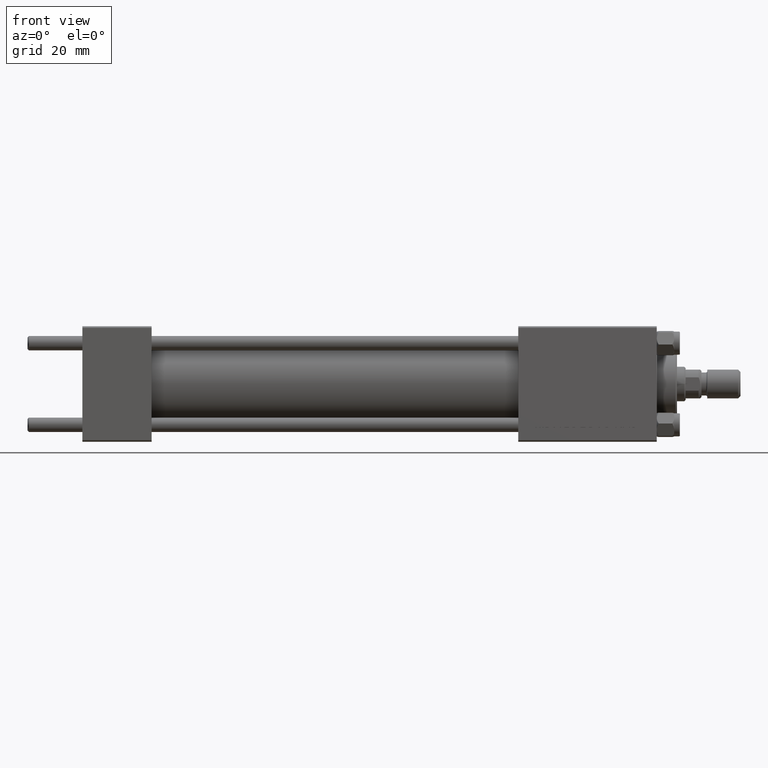
[diagram: clean part render]
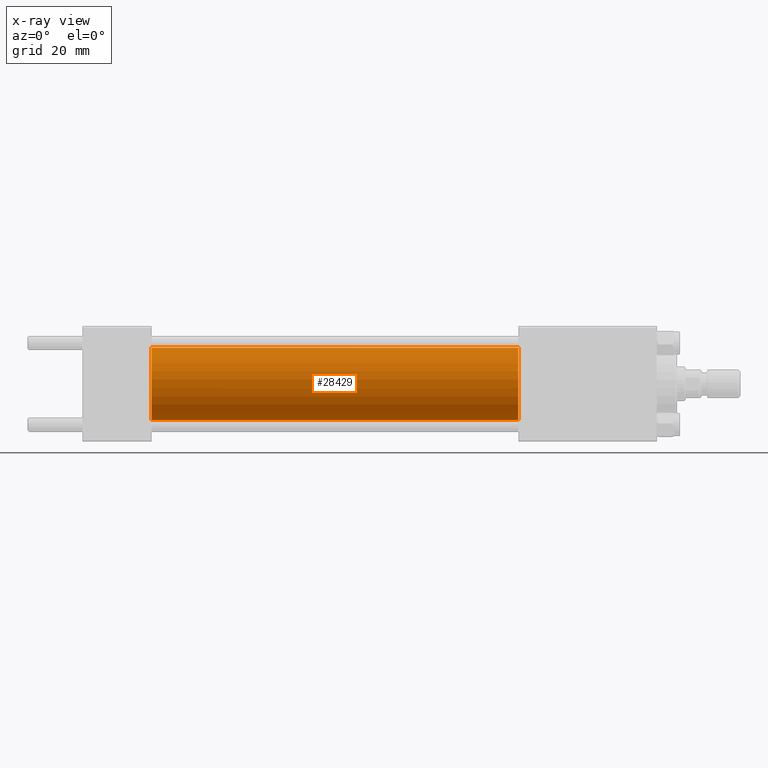
[diagram: x-ray — body ghosted, one internal face saturated and labeled with its STEP entity id]
A machine part, front view, then the same camera in x-ray: the body is ghosted and one INTERNAL B-rep face — a face not visible from any outside direction — is saturated and labeled: STEP entity #28429.
In plain terms, the highlighted cylindrical surface (edge-blend (fillet) strip) has radius 12.5 mm, axis along (-1, -0, -0).
Its self-contained STEP definition (entity closure, byte-faithful):
#407 = CYLINDRICAL_SURFACE ( 'NONE', #20886, 12.49999999999999645 ) ;
#1081 = DIRECTION ( 'NONE',  ( 1.000000000000000000, 0.000000000000000000, 0.000000000000000000 ) ) ;
#3031 = DIRECTION ( 'NONE',  ( -1.000000000000000000, -0.000000000000000000, -0.000000000000000000 ) ) ;
#3155 = EDGE_CURVE ( 'NONE', #42915, #33418, #31023, .T. ) ;
#3268 = AXIS2_PLACEMENT_3D ( 'NONE', #22132, #21378, #13736 ) ;
#3769 = EDGE_CURVE ( 'NONE', #49927, #24789, #44896, .T. ) ;
#8973 = CARTESIAN_POINT ( 'NONE',  ( 151.0000000000000000, 0.000000000000000000, 0.000000000000000000 ) ) ;
#9966 = DIRECTION ( 'NONE',  ( -1.000000000000000000, -0.000000000000000000, -0.000000000000000000 ) ) ;
#11670 = CARTESIAN_POINT ( 'NONE',  ( 151.0000000000000000, 1.530808498934191127E-15, -12.49999999999999645 ) ) ;
#13062 = DIRECTION ( 'NONE',  ( 0.000000000000000000, 0.000000000000000000, -1.000000000000000000 ) ) ;
#13736 = DIRECTION ( 'NONE',  ( 0.000000000000000000, 0.000000000000000000, -1.000000000000000000 ) ) ;
#16627 = EDGE_CURVE ( 'NONE', #42915, #49927, #16879, .T. ) ;
#16879 = CIRCLE ( 'NONE', #21770, 12.49999999999999645 ) ;
#19828 = CARTESIAN_POINT ( 'NONE',  ( 151.0000000000000000, 0.000000000000000000, 12.49999999999999645 ) ) ;
#20886 = AXIS2_PLACEMENT_3D ( 'NONE', #23836, #3031, #39651 ) ;
#21378 = DIRECTION ( 'NONE',  ( 1.000000000000000000, 0.000000000000000000, 0.000000000000000000 ) ) ;
#21770 = AXIS2_PLACEMENT_3D ( 'NONE', #8973, #1081, #13062 ) ;
#22132 = CARTESIAN_POINT ( 'NONE',  ( 24.00000000000000000, 0.000000000000000000, 0.000000000000000000 ) ) ;
#22585 = ORIENTED_EDGE ( 'NONE', *, *, #23519, .F. ) ;
#22672 = ORIENTED_EDGE ( 'NONE', *, *, #3769, .T. ) ;
#23519 = EDGE_CURVE ( 'NONE', #33418, #24789, #34185, .T. ) ;
#23836 = CARTESIAN_POINT ( 'NONE',  ( 151.0000000000000000, 0.000000000000000000, 0.000000000000000000 ) ) ;
#24698 = VECTOR ( 'NONE', #9966, 1000.000000000000000 ) ;
#24789 = VERTEX_POINT ( 'NONE', #32489 ) ;
#25781 = CARTESIAN_POINT ( 'NONE',  ( 151.0000000000000000, 0.000000000000000000, 12.49999999999999645 ) ) ;
#28429 = ADVANCED_FACE ( 'NONE', ( #46548 ), #407, .F. ) ;
#31023 = LINE ( 'NONE', #19828, #36060 ) ;
#31654 = ORIENTED_EDGE ( 'NONE', *, *, #3155, .F. ) ;
#32489 = CARTESIAN_POINT ( 'NONE',  ( 24.00000000000000000, 1.530808498934191127E-15, -12.49999999999999645 ) ) ;
#33418 = VERTEX_POINT ( 'NONE', #43759 ) ;
#34185 = CIRCLE ( 'NONE', #3268, 12.49999999999999645 ) ;
#36060 = VECTOR ( 'NONE', #39189, 1000.000000000000000 ) ;
#39189 = DIRECTION ( 'NONE',  ( -1.000000000000000000, -0.000000000000000000, -0.000000000000000000 ) ) ;
#39651 = DIRECTION ( 'NONE',  ( 0.000000000000000000, 0.000000000000000000, 1.000000000000000000 ) ) ;
#39852 = ORIENTED_EDGE ( 'NONE', *, *, #16627, .T. ) ;
#41330 = CARTESIAN_POINT ( 'NONE',  ( 151.0000000000000000, 1.530808498934191127E-15, -12.49999999999999645 ) ) ;
#42915 = VERTEX_POINT ( 'NONE', #25781 ) ;
#43759 = CARTESIAN_POINT ( 'NONE',  ( 24.00000000000000000, 0.000000000000000000, 12.49999999999999645 ) ) ;
#44896 = LINE ( 'NONE', #41330, #24698 ) ;
#46548 = FACE_OUTER_BOUND ( 'NONE', #47176, .T. ) ;
#47176 = EDGE_LOOP ( 'NONE', ( #39852, #22672, #22585, #31654 ) ) ;
#49927 = VERTEX_POINT ( 'NONE', #11670 ) ;